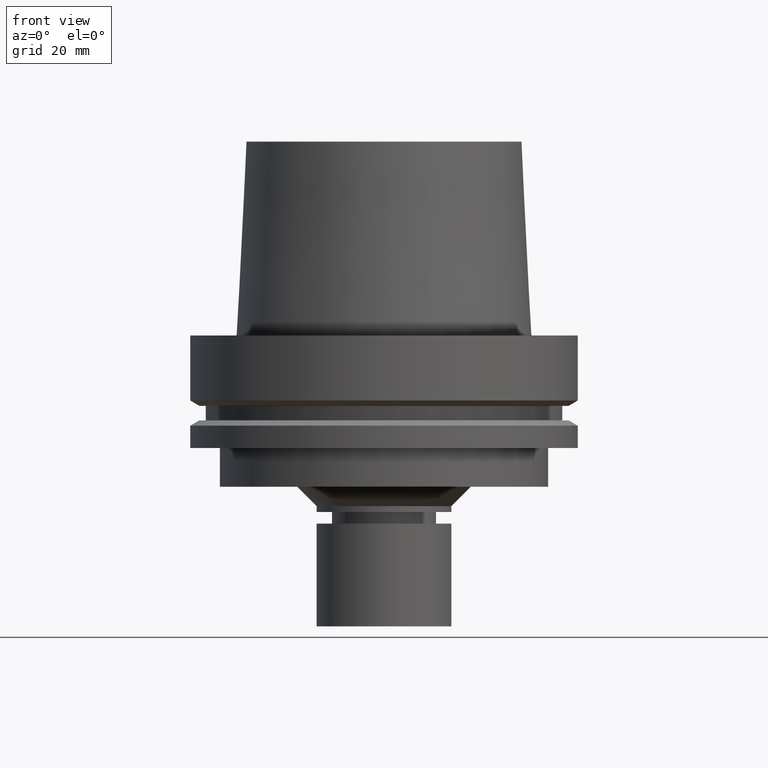
[diagram: clean part render]
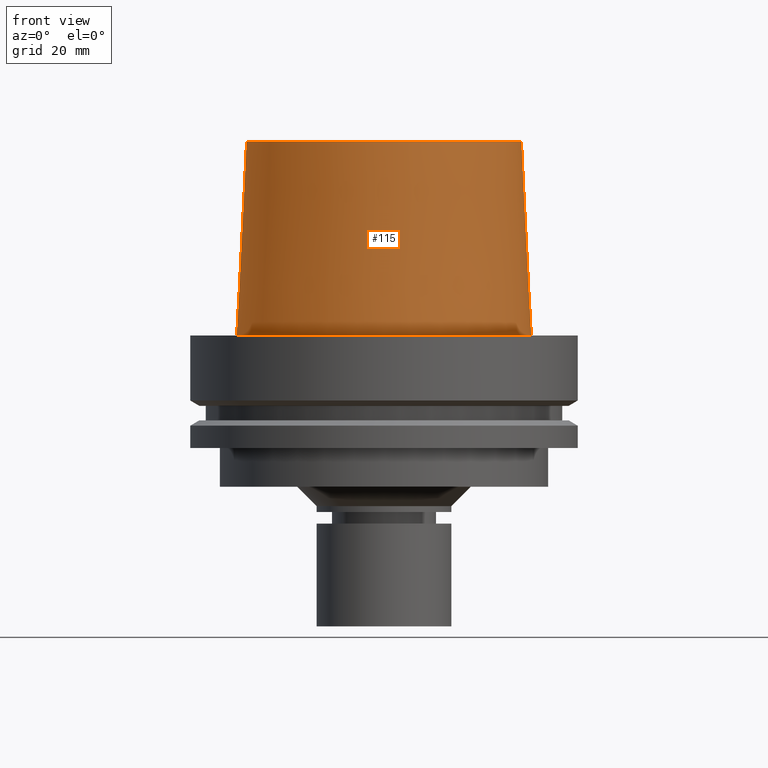
[diagram: same view with one face highlighted and labeled with its STEP entity id]
A machine part, front view. The second image highlights one B-rep face of the part: STEP entity #115.
In plain terms, the highlighted conical surface has half-angle 2.862 deg.
Its self-contained STEP definition (entity closure, byte-faithful):
#110=EDGE_CURVE('Unnamed[1]',#267,#267,#268,.T.);
#115=ADVANCED_FACE('Unnamed[1]',(#274,#275),#276,.T.);
#193=EDGE_CURVE('Unnamed[1]',#394,#394,#395,.T.);
#267=VERTEX_POINT('',#478);
#268=CIRCLE('',#479,37.9999999999349);
#274=FACE_BOUND('',#487,.T.);
#275=FACE_BOUND('',#488,.T.);
#276=CONICAL_SURFACE('',#489,36.7500000007484,0.0499583956894843);
#394=VERTEX_POINT('',#636);
#395=CIRCLE('',#637,35.5000000015618);
#478=CARTESIAN_POINT('',(-3.3636548776863E-032,37.9999999999349,-2.44634216324803E-015));
#479=AXIS2_PLACEMENT_3D('',#707,#708,#709);
#487=EDGE_LOOP('',(#714));
#488=EDGE_LOOP('',(#715));
#489=AXIS2_PLACEMENT_3D('',#716,#717,#718);
#636=CARTESIAN_POINT('',(-3.06161699786838E-015,35.5000000015618,50.0));
#637=AXIS2_PLACEMENT_3D('',#845,#846,#847);
#707=CARTESIAN_POINT('',(0.0,0.0,0.0));
#708=DIRECTION('',(6.12323399573677E-017,1.22464679914735E-016,-1.0));
#709=DIRECTION('',(-1.23259516440783E-032,1.0,1.22464679914735E-016));
#714=ORIENTED_EDGE('',*,*,#110,.F.);
#715=ORIENTED_EDGE('',*,*,#193,.T.);
#716=CARTESIAN_POINT('',(-1.53080849893419E-015,-3.06161699786838E-015,25.0));
#717=DIRECTION('',(6.12323399573676E-017,1.22464679914735E-016,-1.0));
#718=DIRECTION('',(-1.23259516440783E-032,1.0,1.22464679914735E-016));
#845=CARTESIAN_POINT('',(-3.06161699786838E-015,-6.12323399573676E-015,50.0));
#846=DIRECTION('',(6.12323399573677E-017,1.22464679914735E-016,-1.0));
#847=DIRECTION('',(-1.23259516440783E-032,1.0,1.22464679914735E-016));